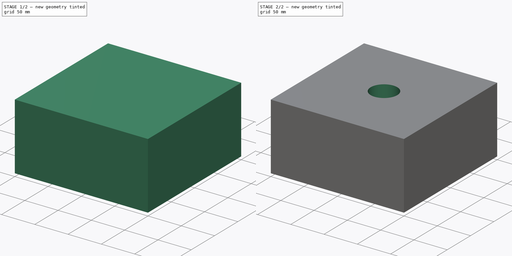
[diagram: build sequence overview — one tinted view per stage of 2, left to right]
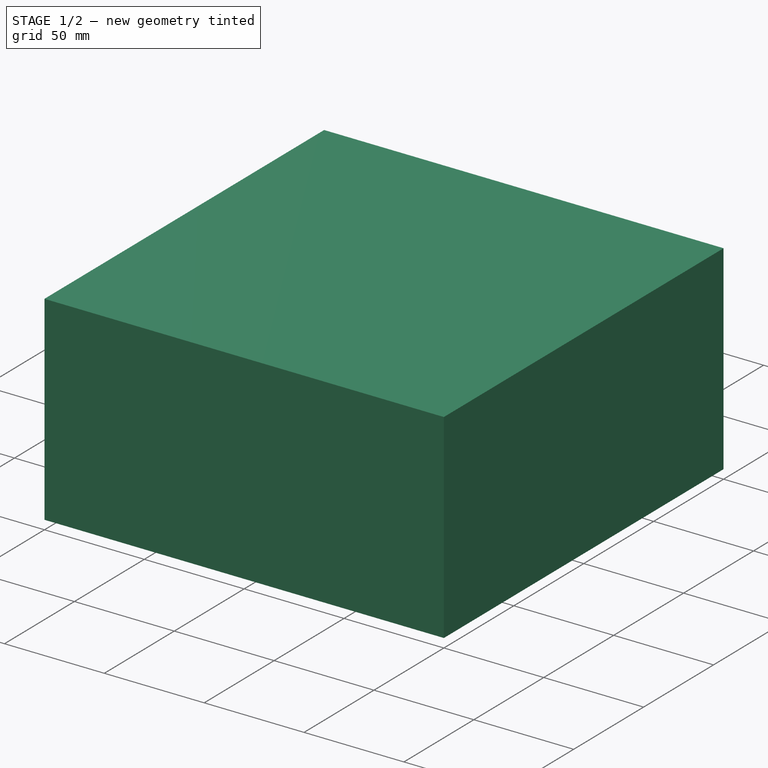
[diagram: stage 1 of 2 — iso view after this stage's code; geometry added in this stage tinted green]
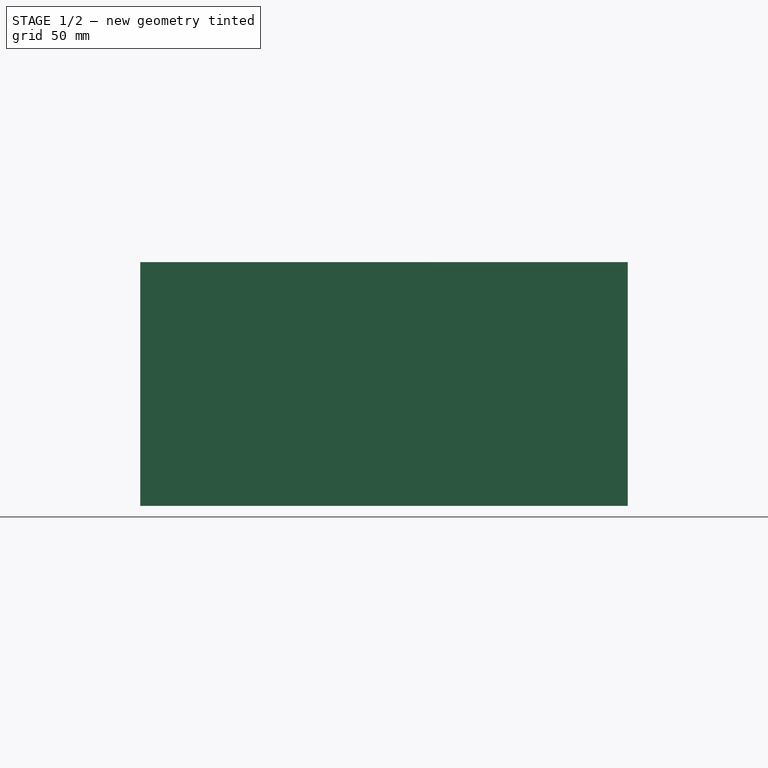
[diagram: stage 1 of 2 — front view after this stage's code; geometry added in this stage tinted green]
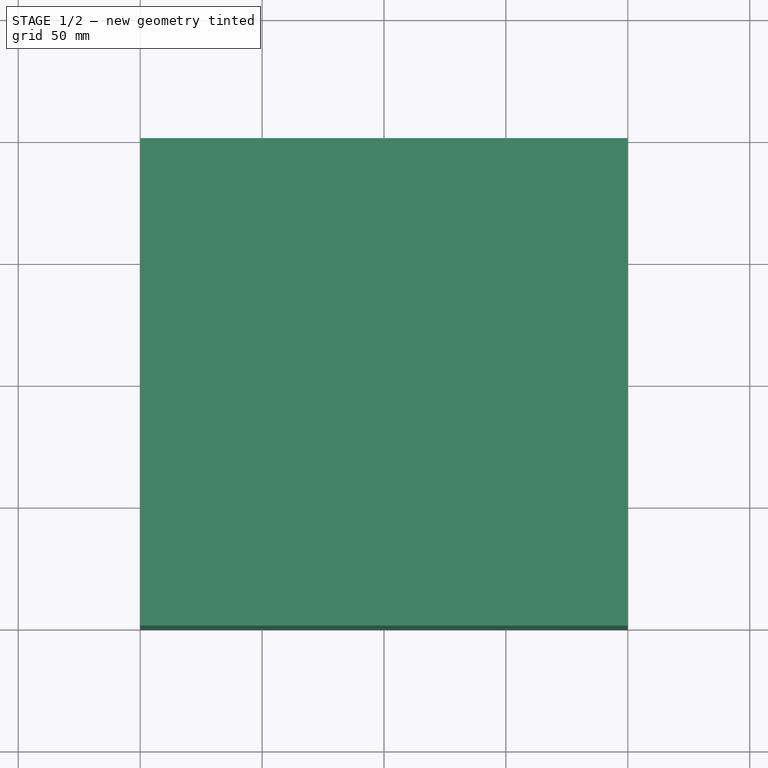
[diagram: stage 1 of 2 — top view after this stage's code; geometry added in this stage tinted green]
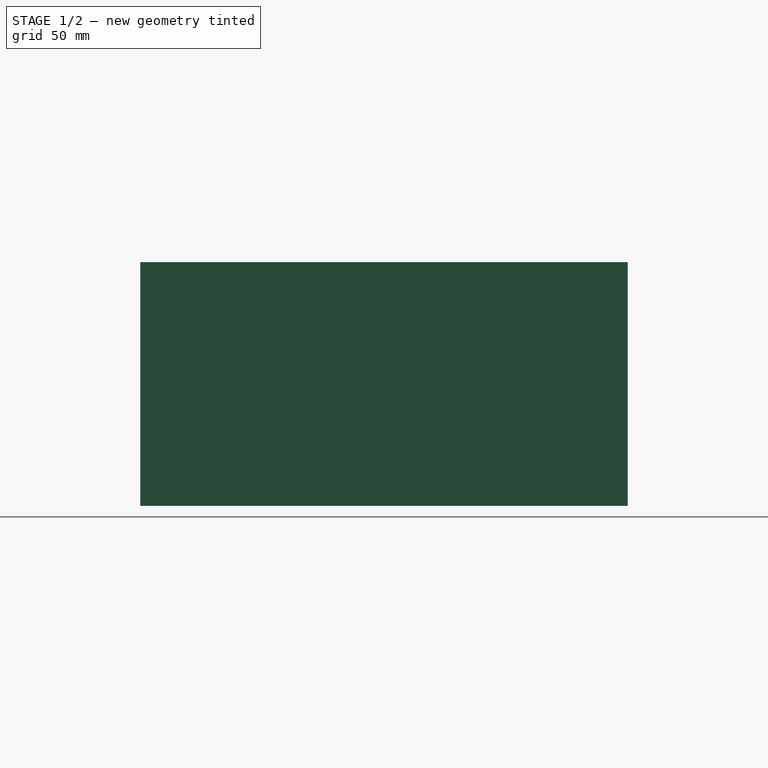
[diagram: stage 1 of 2 — right view after this stage's code; geometry added in this stage tinted green]
FCSTD DOCUMENT  (FreeCAD 0.16R6706 (Git))
Label: hole
License: All rights reserved
LicenseURL: http://en.wikipedia.org/wiki/All_rights_reserved
objects: Sketcher::SketchObject×2, PartDesign::Pad×1, PartDesign::Pocket×1, Drawing::FeatureViewPart×1, Drawing::FeaturePage×1
note: 6 computed .brp shape members not serialized (recipe doc carries the construction recipe); baked Part::Feature solids carry a one-line shape summary decoded from their .brp

FEATURE [Sketcher::SketchObject] Sketch
  sketch-geometry (4):
    g0: LineSegment StartX=-100 StartY=100 StartZ=0 EndX=100 EndY=100 EndZ=0
    g1: LineSegment StartX=100 StartY=100 StartZ=0 EndX=100 EndY=-100 EndZ=0
    g2: LineSegment StartX=100 StartY=-100 StartZ=0 EndX=-100 EndY=-100 EndZ=0
    g3: LineSegment StartX=-100 StartY=-100 StartZ=0 EndX=-100 EndY=100 EndZ=0
  constraints (11):
    c: Coincident(g0,g1)
    c: Coincident(g1,g2)
    c: Coincident(g2,g3)
    c: Coincident(g3,g0)
    c: Horizontal(g0)
    c: Horizontal(g2)
    c: Vertical(g1)
    c: Vertical(g3)
    c: Symmetric(g0,g1,g-1)
    c: Equal(g0,g1)
    c: DistanceX(g0,g0) = 200
FEATURE [PartDesign::Pad] Pad
  Length = 100
  Length2 = 100
  Sketch = -> Sketch
  Type = 0
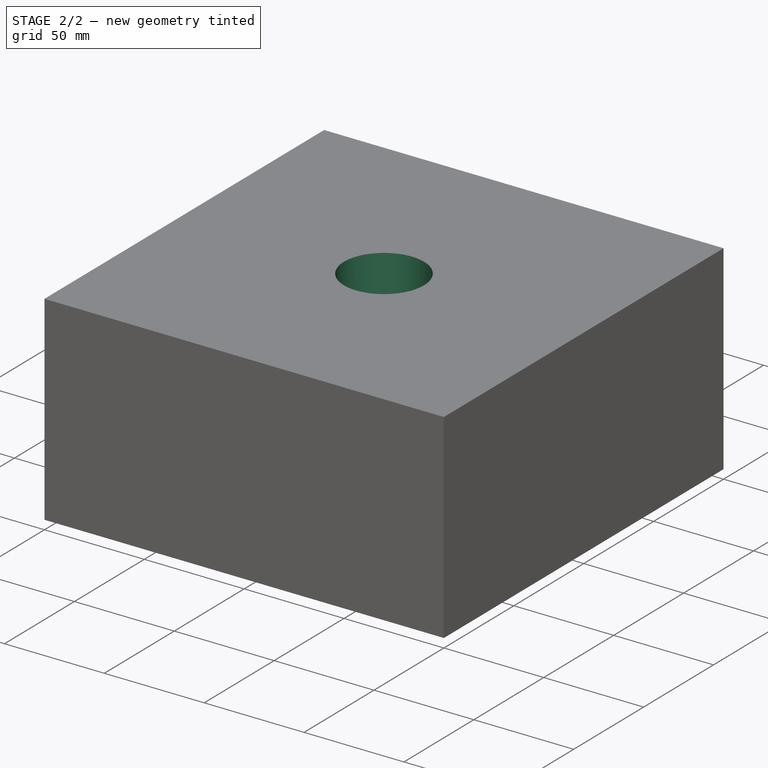
[diagram: stage 2 of 2 — iso view after this stage's code; geometry added in this stage tinted green]
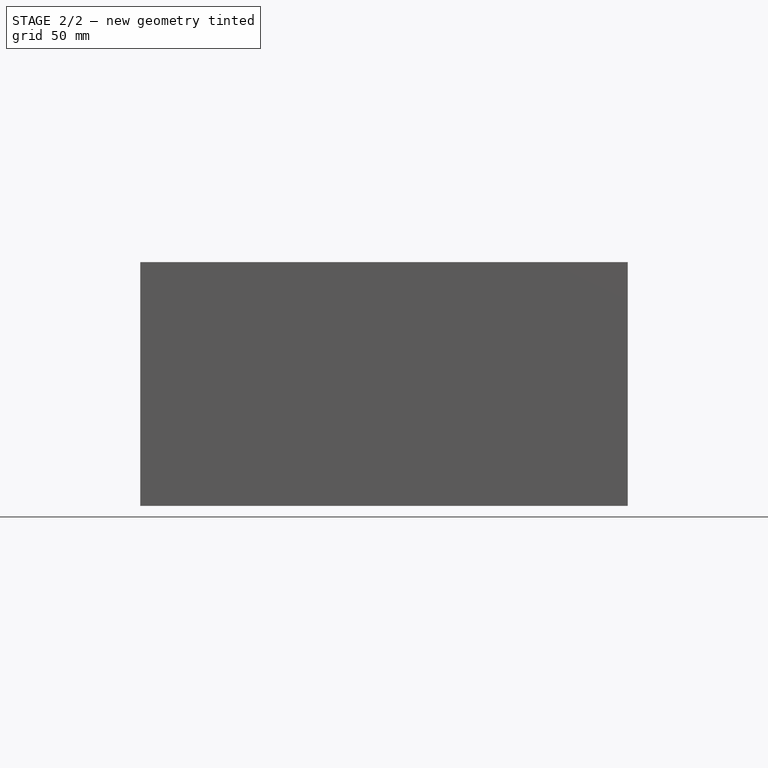
[diagram: stage 2 of 2 — front view after this stage's code; geometry added in this stage tinted green]
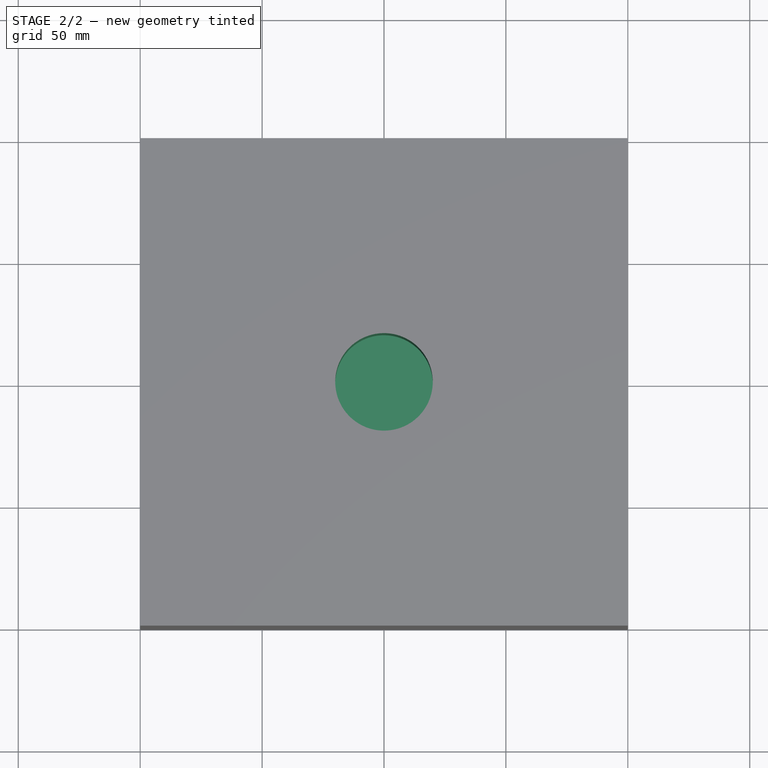
[diagram: stage 2 of 2 — top view after this stage's code; geometry added in this stage tinted green]
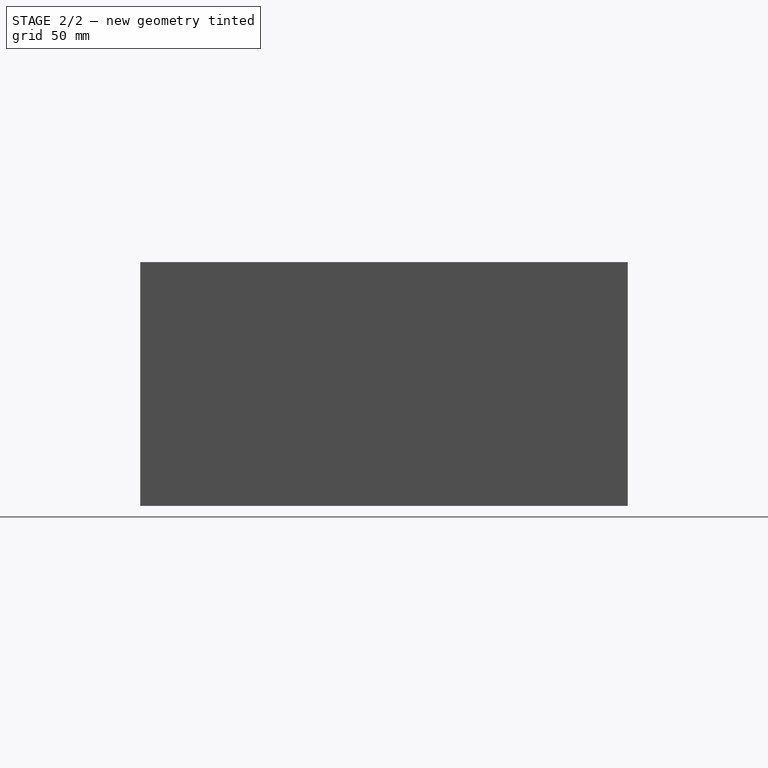
[diagram: stage 2 of 2 — right view after this stage's code; geometry added in this stage tinted green]
FEATURE [Sketcher::SketchObject] Sketch001
  Placement = pos=(0,0,100) rot=(0,0,1;0rad)
  Support = -> Pad [Face6]
  sketch-geometry (1):
    g0: Circle CenterX=0 CenterY=0 CenterZ=0 NormalX=0 NormalY=0 NormalZ=1 Radius=20
  constraints (2):
    c: Coincident(g0,g-1)
    c: Radius(g0) = 20
FEATURE [PartDesign::Pocket] Pocket
  Length = 50
  Sketch = -> Sketch001
  Type = 0
FEATURE [Drawing::FeatureViewPart] View
  Direction = (1,-1,1)
  HiddenWidth = 0.15
  LineWidth = 0.35
  Rotation = 60
  Scale = 0.33
  ShowHiddenLines = true
  ShowSmoothLines = false
  Source = -> Pocket
  Tolerance = 0.05
  ViewResult = <g id="View"\n   transform="rotate(60,105,189.325) translate(105,189.325) scale(0.33,0.33)"\n  >\n<g   stroke="rgb(0, 0, 0)"\n   stroke-width="0.454545"\n   stroke-linecap="butt"\n   stroke-linejoin="miter"\n   stroke-dasharray="0.2,0.1"\n   fill="none"\n   transform="scale(1,-1)"\n  >\n<path id= "1" d=" M -70.7107 40.8248 L -141.421 81.6497 " />\n<path id= "2" d=" M -70.7107 40.8248 L 70.7107 122.474 " />\n<path id= "3" d=" M -70.7107 -122.474 L -70.7107 40.8248 " />\n<path d="M-21.2132 28.5774 A20 11.547 60 0 1 -25.3553 37.7329" />\n<path d="M-25.3553 37.7329 A20 11.547 60 0 1 -45.3553 3.09191" />\n<path d="M-45.3553 3.09191 A20 11.547 60 0 1 -21.2132 28.5774" />\n</g>\n<g   stroke="rgb(0, 0, 0)"\n   stroke-width="0.454545"\n   stroke-linecap="butt"\n   stroke-linejoin="miter"\n   stroke-dasharray="0.02,0.1"\n   fill="none"\n   transform="scale(1,-1)"\n  >\n<path id= "1" d=" M -25.3553 37.7329 L -60.7107 58.1453 " />\n<path id= "2" d=" M -45.3553 3.09191 L -80.7107 23.5043 " />\n</g>\n<g   stroke="rgb(0, 0, 0)"\n   stroke-width="1.06061"\n   stroke-linecap="butt"\n   stroke-linejoin="miter"\n   fill="none"\n   transform="scale(1,-1)"\n  >\n<path id= "1" d=" M 70.7107 122.474 L -1.42109e-14 163.299 " />\n<path id= "2" d=" M -141.421 81.6497 L 2.84217e-14 163.299 " />\n<path id= "3" d=" M -70.7107 -122.474 L -141.421 -81.6497 " />\n<path id= "4" d=" M -141.421 -81.6497 L -141.421 81.6497 " />\n<path id= "5" d=" M 70.7107 -40.8248 L -1.42109e-14 7.10543e-15 " />\n<path id= "6" d=" M 70.7107 122.474 L 70.7107 -40.8248 " />\n<path id= "7" d=" M 0 163.299 L 0 0 " />\n<path id= "8" d=" M 70.7107 -40.8248 L -70.7107 -122.474 " />\n<path id= "9" d=" M 0 0 L -141.421 -81.6497 " />\n<path d="M-56.5685 48.9898 A20 11.547 60 0 1 -60.7107 58.1453" />\n<path d="M-60.7107 58.1453 A20 11.547 60 0 1 -80.7107 23.5043" />\n<path d="M-80.7107 23.5043 A20 11.547 60 0 1 -56.5685 48.9898" />\n</g>\n</g>
  Visible = true
  X = 105
  Y = 189.325
FEATURE [Drawing::FeaturePage] Page
  Group = -> [View]
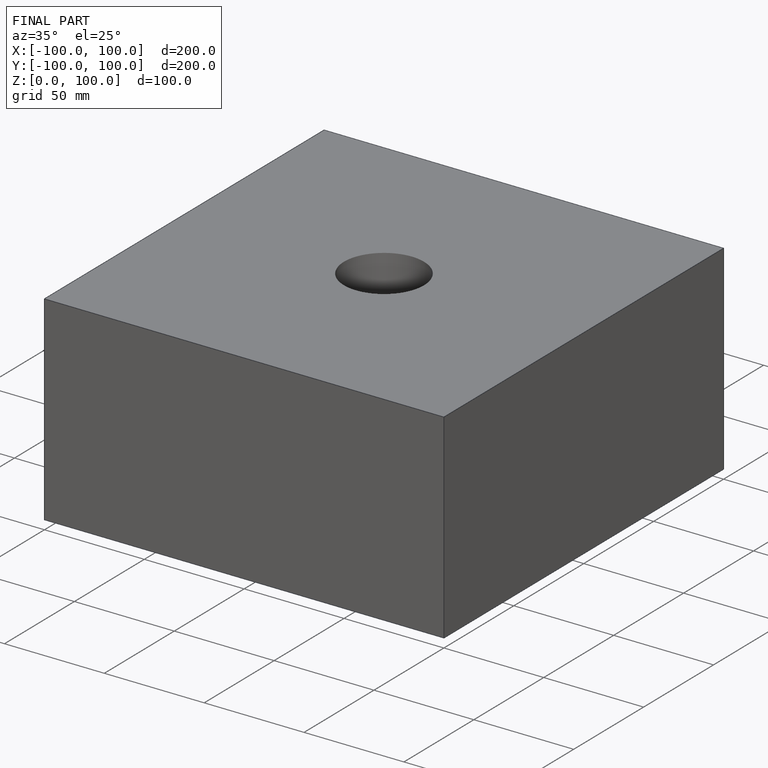
[diagram: finished part — iso view with bounding-box wireframe]
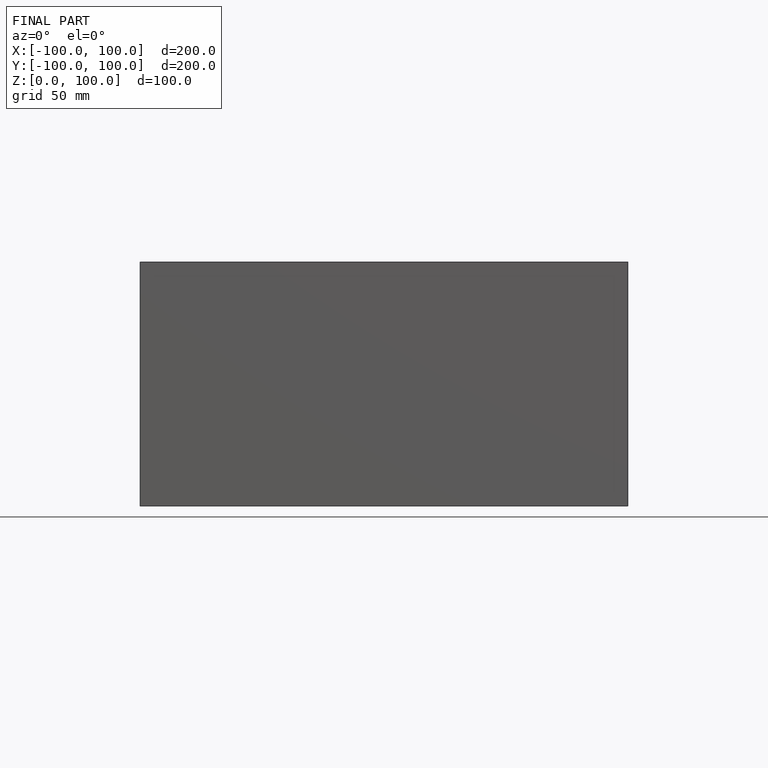
[diagram: finished part — front view with bounding-box wireframe]
